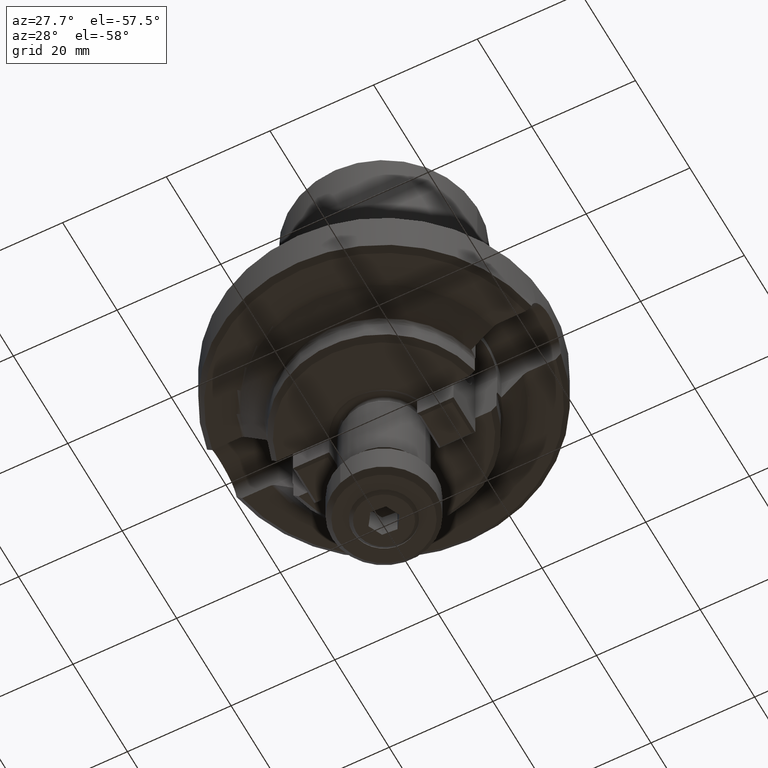
[diagram: clean part render]
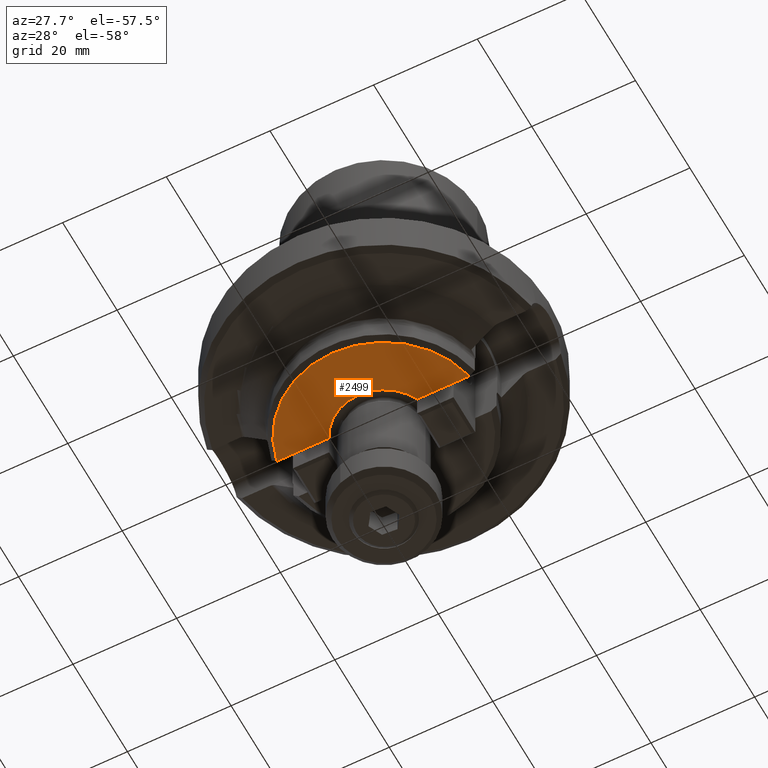
[diagram: same view with one face highlighted and labeled with its STEP entity id]
A machine part, auxiliary view. The second image highlights one B-rep face of the part: STEP entity #2499.
In plain terms, the highlighted planar face has unit normal (0, 0, 1).
Its self-contained STEP definition (entity closure, byte-faithful):
#1833=EDGE_CURVE('NONE',#1985,#2385,#4122,.T.);
#1973=EDGE_CURVE('NONE',#1985,#2309,#4280,.T.);
#1985=VERTEX_POINT('NONE',#4294);
#2309=VERTEX_POINT('NONE',#4655);
#2385=VERTEX_POINT('NONE',#4745);
#2477=EDGE_CURVE('NONE',#2725,#2385,#4850,.T.);
#2499=ADVANCED_FACE('NONE',(#4875),#4876,.F.);
#2725=VERTEX_POINT('NONE',#5130);
#3139=EDGE_CURVE('NONE',#2309,#2725,#5583,.T.);
#4122=LINE('',#7286,#7287);
#4280=CIRCLE('',#7521,19.0);
#4294=CARTESIAN_POINT('',(-18.5741756210067,-4.0,-20.0));
#4655=CARTESIAN_POINT('',(18.5741756210067,-4.0,-20.0));
#4745=CARTESIAN_POINT('',(-8.50646812725469,-4.0,-20.0));
#4850=CIRCLE('',#8530,9.4);
#4875=FACE_OUTER_BOUND('',#8590,.T.);
#4876=PLANE('',#8591);
#5130=CARTESIAN_POINT('',(8.50646812725469,-4.0,-20.0));
#5583=LINE('',#9791,#9792);
#7286=CARTESIAN_POINT('',(0.0,-4.0,-20.0));
#7287=VECTOR('',#11045,1000.0);
#7521=AXIS2_PLACEMENT_3D('',#11239,#11240,#11241);
#8530=AXIS2_PLACEMENT_3D('',#11956,#11957,#11958);
#8590=EDGE_LOOP('',(#11992,#11993,#11994,#11995));
#8591=AXIS2_PLACEMENT_3D('',#11996,#11997,#11998);
#9791=CARTESIAN_POINT('',(0.0,-4.0,-20.0));
#9792=VECTOR('',#12838,1000.0);
#11045=DIRECTION('',(1.0,0.0,0.0));
#11239=CARTESIAN_POINT('',(0.0,0.0,-20.0));
#11240=DIRECTION('',(0.0,0.0,1.0));
#11241=DIRECTION('',(1.0,0.0,0.0));
#11956=CARTESIAN_POINT('',(0.0,0.0,-20.0));
#11957=DIRECTION('',(0.0,0.0,-1.0));
#11958=DIRECTION('',(1.0,0.0,0.0));
#11992=ORIENTED_EDGE('',*,*,#1973,.F.);
#11993=ORIENTED_EDGE('',*,*,#1833,.T.);
#11994=ORIENTED_EDGE('',*,*,#2477,.F.);
#11995=ORIENTED_EDGE('',*,*,#3139,.F.);
#11996=CARTESIAN_POINT('',(0.0,20.0,-20.0));
#11997=DIRECTION('',(0.0,0.0,1.0));
#11998=DIRECTION('',(1.0,0.0,0.0));
#12838=DIRECTION('',(-1.0,0.0,0.0));